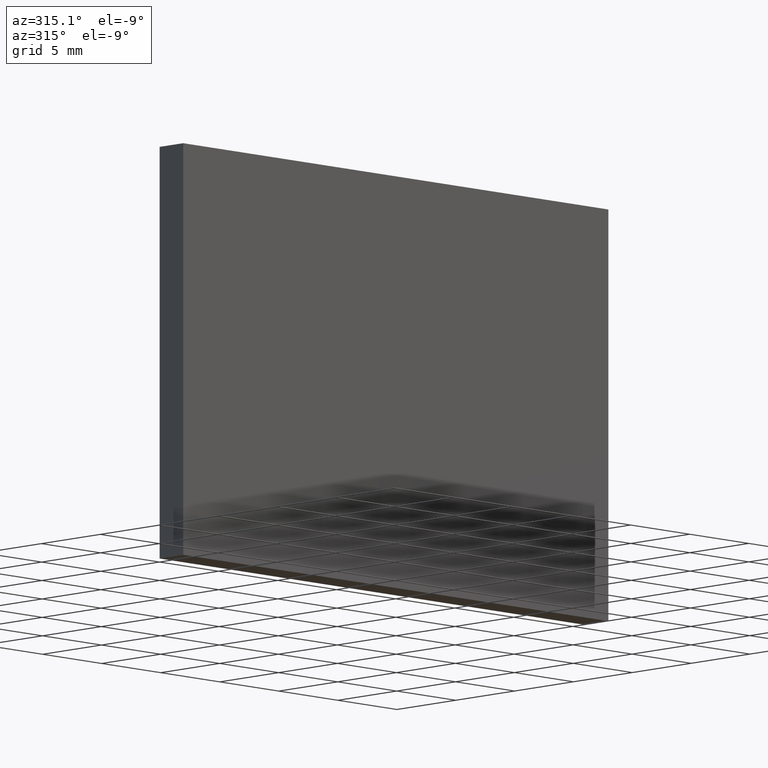
[diagram: clean part render]
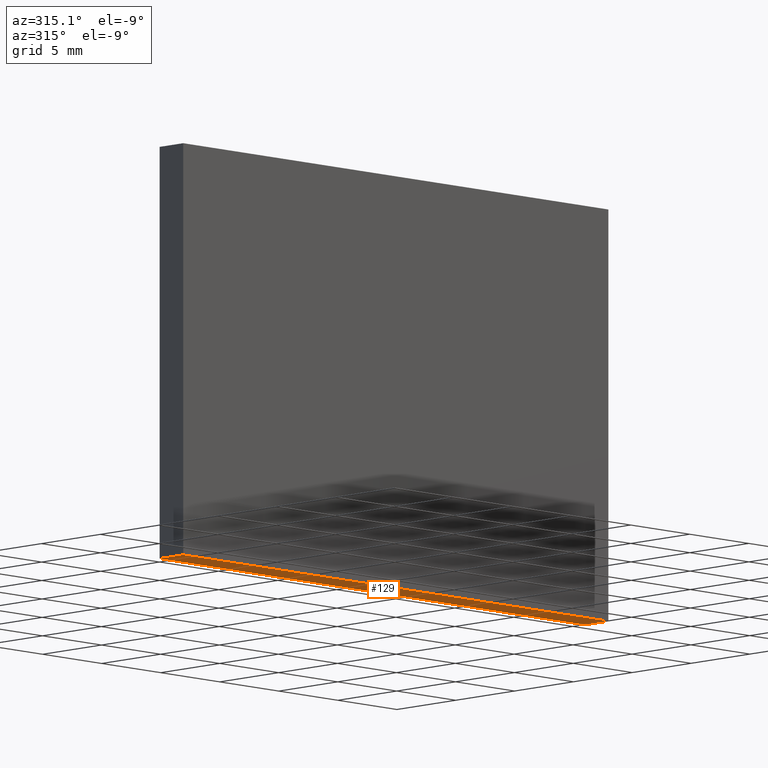
[diagram: same view with one face highlighted and labeled with its STEP entity id]
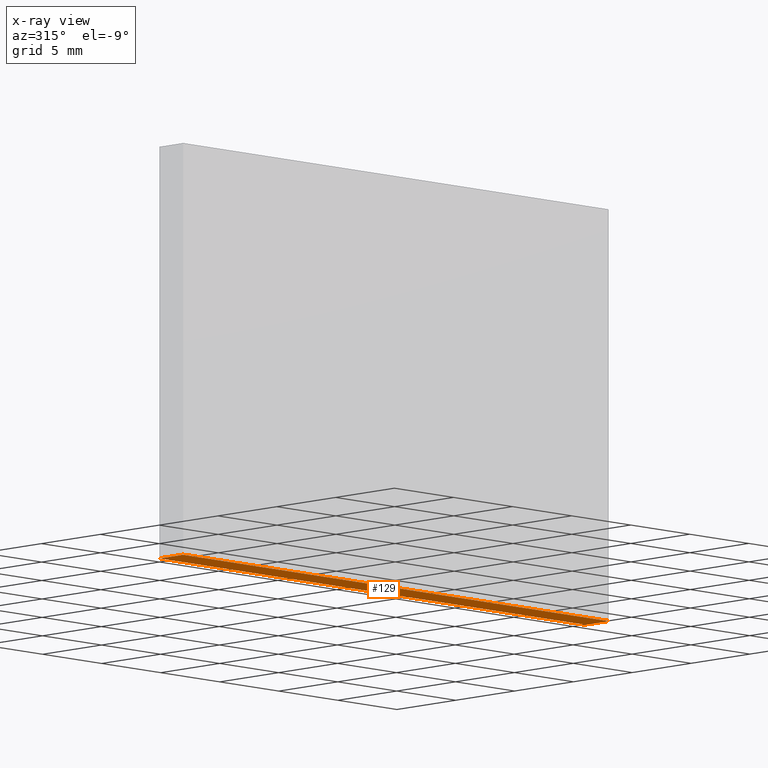
[diagram: x-ray of the same camera — body ghosted, the highlighted face saturated]
A machine part, auxiliary view. The second image highlights one B-rep face of the part: STEP entity #129.
The next image is the same camera in x-ray: the body ghosted, the highlighted face saturated — about 0% of this face is hidden behind the body in this view.
In plain terms, the highlighted planar face has unit normal (0, 0, 1).
Its self-contained STEP definition (entity closure, byte-faithful):
#3 = EDGE_CURVE ( 'NONE', #185, #20, #189, .T. ) ;
#6 = DIRECTION ( 'NONE',  ( 0.0000000000000000000, 0.0000000000000000000, 1.000000000000000000 ) ) ;
#10 = CARTESIAN_POINT ( 'NONE',  ( 17.99999999999999600, 0.0000000000000000000, -12.49999999999999800 ) ) ;
#14 = EDGE_LOOP ( 'NONE', ( #109, #139, #186, #150 ) ) ;
#20 = VERTEX_POINT ( 'NONE', #130 ) ;
#21 = VECTOR ( 'NONE', #57, 1000.000000000000000 ) ;
#24 = VECTOR ( 'NONE', #193, 1000.000000000000000 ) ;
#49 = EDGE_CURVE ( 'NONE', #74, #20, #107, .T. ) ;
#53 = VERTEX_POINT ( 'NONE', #128 ) ;
#56 = DIRECTION ( 'NONE',  ( -1.000000000000000000, -0.0000000000000000000, -0.0000000000000000000 ) ) ;
#57 = DIRECTION ( 'NONE',  ( -1.000000000000000000, -0.0000000000000000000, -0.0000000000000000000 ) ) ;
#59 = CARTESIAN_POINT ( 'NONE',  ( -18.00000000000000400, 2.000000000000000000, -12.49999999999999800 ) ) ;
#67 = CARTESIAN_POINT ( 'NONE',  ( -18.00000000000000400, 2.000000000000000000, -12.49999999999999800 ) ) ;
#73 = VECTOR ( 'NONE', #102, 1000.000000000000000 ) ;
#74 = VERTEX_POINT ( 'NONE', #10 ) ;
#81 = EDGE_CURVE ( 'NONE', #53, #74, #137, .T. ) ;
#85 = CARTESIAN_POINT ( 'NONE',  ( -18.00000000000000400, 2.000000000000000000, -12.49999999999999800 ) ) ;
#92 = DIRECTION ( 'NONE',  ( 1.000000000000000000, 0.0000000000000000000, -0.0000000000000000000 ) ) ;
#102 = DIRECTION ( 'NONE',  ( -0.0000000000000000000, -1.000000000000000000, -0.0000000000000000000 ) ) ;
#107 = LINE ( 'NONE', #196, #152 ) ;
#108 = PLANE ( 'NONE',  #162 ) ;
#109 = ORIENTED_EDGE ( 'NONE', *, *, #49, .T. ) ;
#124 = CARTESIAN_POINT ( 'NONE',  ( -18.00000000000000400, 2.000000000000000000, -12.49999999999999800 ) ) ;
#128 = CARTESIAN_POINT ( 'NONE',  ( 17.99999999999999600, 2.000000000000000000, -12.49999999999999800 ) ) ;
#129 = ADVANCED_FACE ( 'NONE', ( #151 ), #108, .F. ) ;
#130 = CARTESIAN_POINT ( 'NONE',  ( -18.00000000000000400, 0.0000000000000000000, -12.49999999999999800 ) ) ;
#133 = LINE ( 'NONE', #85, #21 ) ;
#137 = LINE ( 'NONE', #142, #24 ) ;
#139 = ORIENTED_EDGE ( 'NONE', *, *, #3, .F. ) ;
#142 = CARTESIAN_POINT ( 'NONE',  ( 17.99999999999999600, 2.000000000000000000, -12.49999999999999800 ) ) ;
#150 = ORIENTED_EDGE ( 'NONE', *, *, #81, .T. ) ;
#151 = FACE_OUTER_BOUND ( 'NONE', #14, .T. ) ;
#152 = VECTOR ( 'NONE', #56, 1000.000000000000000 ) ;
#162 = AXIS2_PLACEMENT_3D ( 'NONE', #67, #6, #92 ) ;
#181 = EDGE_CURVE ( 'NONE', #53, #185, #133, .T. ) ;
#185 = VERTEX_POINT ( 'NONE', #124 ) ;
#186 = ORIENTED_EDGE ( 'NONE', *, *, #181, .F. ) ;
#189 = LINE ( 'NONE', #59, #73 ) ;
#193 = DIRECTION ( 'NONE',  ( -0.0000000000000000000, -1.000000000000000000, -0.0000000000000000000 ) ) ;
#196 = CARTESIAN_POINT ( 'NONE',  ( -18.00000000000000400, 0.0000000000000000000, -12.49999999999999800 ) ) ;